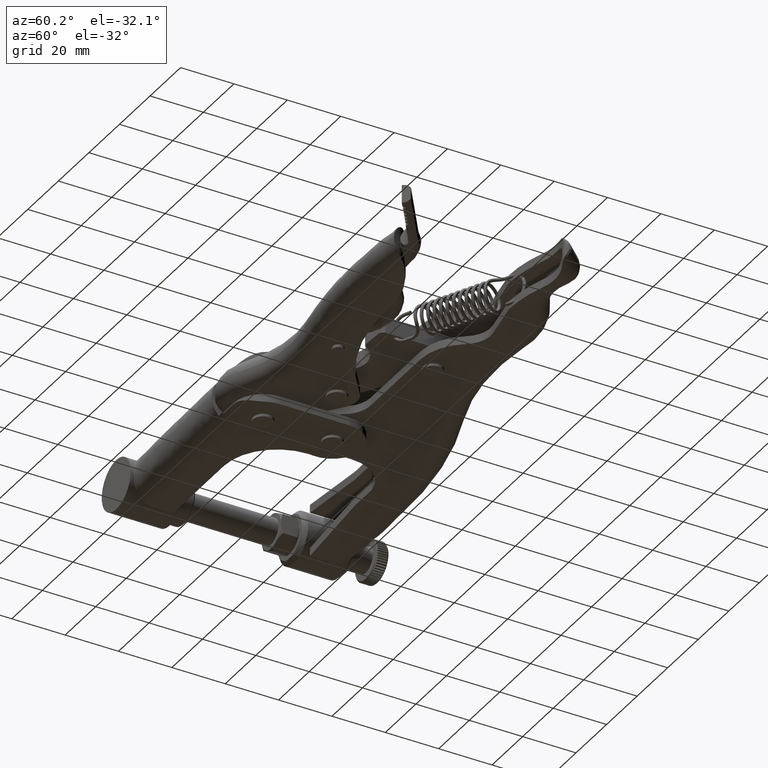
[diagram: clean part render]
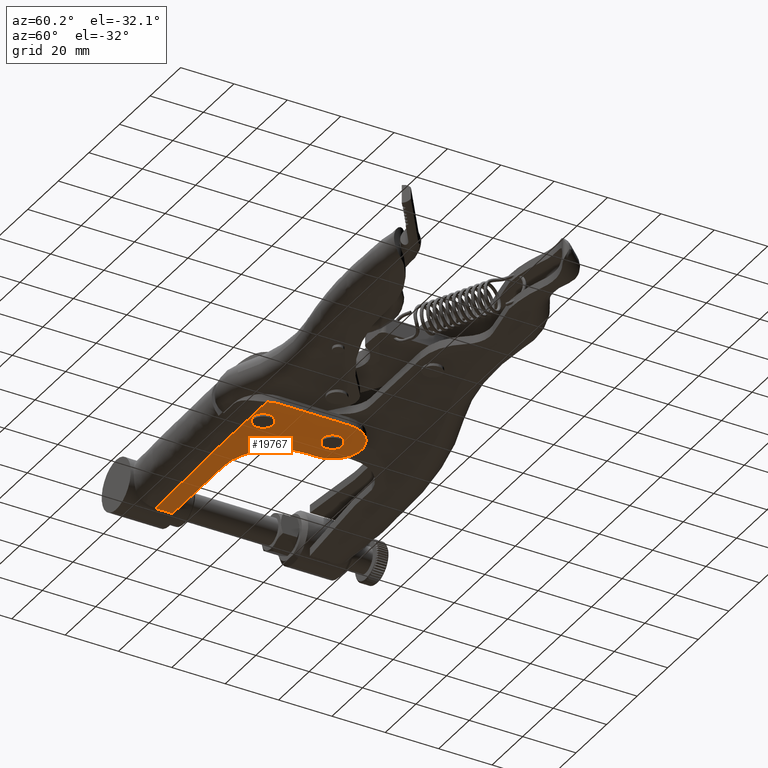
[diagram: same view with one face highlighted and labeled with its STEP entity id]
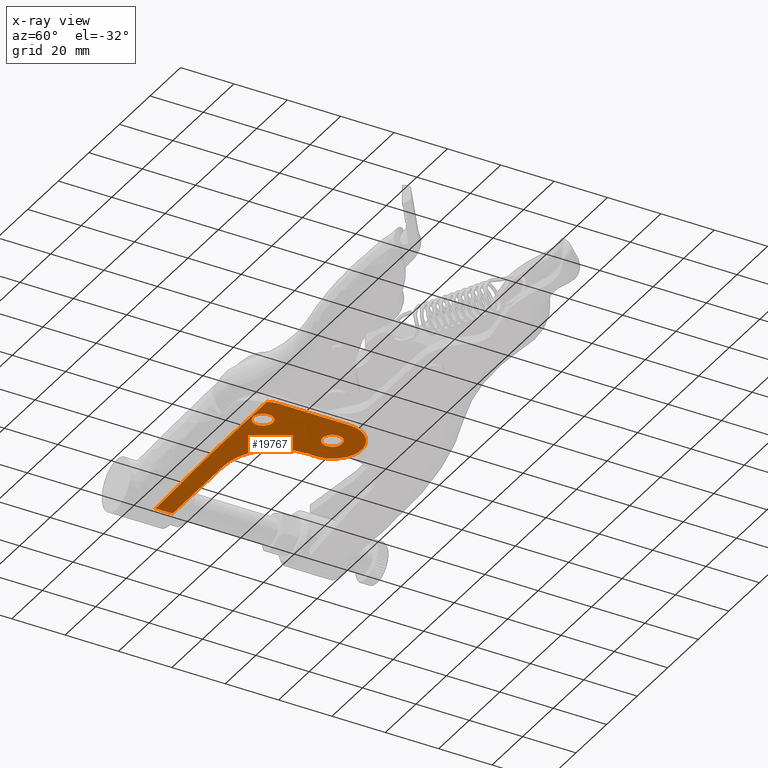
[diagram: x-ray of the same camera — body ghosted, the highlighted face saturated]
A machine part, auxiliary view. The second image highlights one B-rep face of the part: STEP entity #19767.
The next image is the same camera in x-ray: the body ghosted, the highlighted face saturated — about 0% of this face is hidden behind the body in this view.
In plain terms, the highlighted planar face has unit normal (-0, -0, -1).
Its self-contained STEP definition (entity closure, byte-faithful):
#111 = CARTESIAN_POINT ( 'NONE',  ( -3.700000000000019700, -25.99999999999998200, -9.599999999999996100 ) ) ;
#180 = EDGE_CURVE ( 'NONE', #22341, #20507, #7396, .T. ) ;
#296 = CIRCLE ( 'NONE', #22062, 3.700000000000000200 ) ;
#498 = DIRECTION ( 'NONE',  ( -9.100965374644486600E-058, -7.126397290674516900E-044, -1.000000000000000000 ) ) ;
#774 = ORIENTED_EDGE ( 'NONE', *, *, #13749, .T. ) ;
#1423 = EDGE_LOOP ( 'NONE', ( #6087, #774 ) ) ;
#2082 = ORIENTED_EDGE ( 'NONE', *, *, #22584, .T. ) ;
#2163 = LINE ( 'NONE', #14066, #14013 ) ;
#2170 = CARTESIAN_POINT ( 'NONE',  ( 0.0000000000000000000, 0.0000000000000000000, -9.599999999999996100 ) ) ;
#2387 = CIRCLE ( 'NONE', #25571, 10.99999999999998800 ) ;
#2546 = DIRECTION ( 'NONE',  ( -1.000000000000000000, 7.537373503119224900E-016, -5.367350677155233800E-059 ) ) ;
#3296 = ORIENTED_EDGE ( 'NONE', *, *, #22819, .F. ) ;
#3899 = CARTESIAN_POINT ( 'NONE',  ( -1.961050679483156100E-014, -25.99999999999998200, -9.599999999999996100 ) ) ;
#4543 = DIRECTION ( 'NONE',  ( 1.000000000000000000, 0.0000000000000000000, 0.0000000000000000000 ) ) ;
#4816 = PLANE ( 'NONE',  #8929 ) ;
#5070 = CARTESIAN_POINT ( 'NONE',  ( -10.94836998877138400, -1.064516129032237800, -9.599999999999999600 ) ) ;
#5423 = VECTOR ( 'NONE', #22760, 1000.000000000000000 ) ;
#5854 = AXIS2_PLACEMENT_3D ( 'NONE', #24501, #10295, #26896 ) ;
#6087 = ORIENTED_EDGE ( 'NONE', *, *, #19409, .T. ) ;
#6252 = CARTESIAN_POINT ( 'NONE',  ( -3.700000000000000200, 4.531193156845206200E-016, -9.599999999999996100 ) ) ;
#6255 = DIRECTION ( 'NONE',  ( 1.000000000000000000, 0.0000000000000000000, 0.0000000000000000000 ) ) ;
#6314 = CARTESIAN_POINT ( 'NONE',  ( 3.699999999999980600, -25.99999999999998200, -9.599999999999996100 ) ) ;
#6490 = EDGE_CURVE ( 'NONE', #6573, #11311, #19582, .T. ) ;
#6573 = VERTEX_POINT ( 'NONE', #5070 ) ;
#7153 = DIRECTION ( 'NONE',  ( -9.100965374644486600E-058, -7.126397290674516900E-044, -1.000000000000000000 ) ) ;
#7299 = ORIENTED_EDGE ( 'NONE', *, *, #25739, .T. ) ;
#7396 = LINE ( 'NONE', #17911, #30413 ) ;
#7468 = EDGE_CURVE ( 'NONE', #8599, #26868, #2163, .T. ) ;
#7893 = ORIENTED_EDGE ( 'NONE', *, *, #180, .T. ) ;
#7932 = AXIS2_PLACEMENT_3D ( 'NONE', #3899, #20469, #6255 ) ;
#8148 = EDGE_CURVE ( 'NONE', #20249, #21037, #296, .T. ) ;
#8599 = VERTEX_POINT ( 'NONE', #10536 ) ;
#8704 = EDGE_CURVE ( 'NONE', #27972, #8599, #11737, .T. ) ;
#8860 = EDGE_CURVE ( 'NONE', #28766, #20507, #10976, .T. ) ;
#8929 = AXIS2_PLACEMENT_3D ( 'NONE', #11848, #16716, #2546 ) ;
#9235 = CIRCLE ( 'NONE', #16940, 20.00000000000003600 ) ;
#9294 = FACE_BOUND ( 'NONE', #9913, .T. ) ;
#9336 = CARTESIAN_POINT ( 'NONE',  ( -14.76067881196530400, -30.57641437369050100, -9.599999999999999600 ) ) ;
#9913 = EDGE_LOOP ( 'NONE', ( #22514, #2082 ) ) ;
#9916 = CARTESIAN_POINT ( 'NONE',  ( 10.11982383505304400, -30.31151545833844800, -9.599999999999999600 ) ) ;
#10295 = DIRECTION ( 'NONE',  ( -0.0000000000000000000, -0.0000000000000000000, 1.000000000000000000 ) ) ;
#10536 = CARTESIAN_POINT ( 'NONE',  ( -64.50000000000005700, -22.99999999999998200, -9.599999999999999600 ) ) ;
#10976 = CIRCLE ( 'NONE', #24066, 10.99999999999998400 ) ;
#11108 = AXIS2_PLACEMENT_3D ( 'NONE', #21352, #7153, #23722 ) ;
#11311 = VERTEX_POINT ( 'NONE', #23620 ) ;
#11737 = LINE ( 'NONE', #15606, #5423 ) ;
#11848 = CARTESIAN_POINT ( 'NONE',  ( -25.70658828548619500, -96.87746532713544000, -9.599999999999999600 ) ) ;
#13352 = CARTESIAN_POINT ( 'NONE',  ( -3.081487911019577400E-029, -3.469446951953614200E-015, -9.599999999999999600 ) ) ;
#13647 = CARTESIAN_POINT ( 'NONE',  ( -1.959717110810999600E-014, -25.99999999999997900, -9.599999999999999600 ) ) ;
#13688 = DIRECTION ( 'NONE',  ( -0.0000000000000000000, -0.0000000000000000000, 1.000000000000000000 ) ) ;
#13749 = EDGE_CURVE ( 'NONE', #26763, #28351, #29435, .T. ) ;
#14013 = VECTOR ( 'NONE', #23784, 1000.000000000000000 ) ;
#14066 = CARTESIAN_POINT ( 'NONE',  ( -64.50000000000000000, -96.87746532713539700, -9.599999999999999600 ) ) ;
#14670 = CARTESIAN_POINT ( 'NONE',  ( -30.85449724108308800, -2.999999999999985300, -9.599999999999999600 ) ) ;
#14850 = FACE_BOUND ( 'NONE', #1423, .T. ) ;
#15098 = B_SPLINE_CURVE_WITH_KNOTS ( 'NONE', 3,
 ( #18785, #9336, #30687, #16491 ),
 .UNSPECIFIED., .F., .F.,
 ( 4, 4 ),
 ( 0.01165457610109379100, 1.000000000000000000 ),
 .UNSPECIFIED. ) ;
#15359 = ORIENTED_EDGE ( 'NONE', *, *, #6490, .F. ) ;
#15606 = CARTESIAN_POINT ( 'NONE',  ( -25.70658828548614100, -23.00000000000001100, -9.599999999999999600 ) ) ;
#15739 = DIRECTION ( 'NONE',  ( -1.000000000000000000, 7.537373503119224900E-016, 0.0000000000000000000 ) ) ;
#16024 = DIRECTION ( 'NONE',  ( -1.000000000000000000, 4.415659757031879000E-015, 0.0000000000000000000 ) ) ;
#16491 = CARTESIAN_POINT ( 'NONE',  ( -64.49999999999994300, -29.32204455408451000, -9.599999999999999600 ) ) ;
#16716 = DIRECTION ( 'NONE',  ( -4.081133987839345500E-062, -7.126397290674516900E-044, -1.000000000000000000 ) ) ;
#16940 = AXIS2_PLACEMENT_3D ( 'NONE', #14670, #498, #17054 ) ;
#17054 = DIRECTION ( 'NONE',  ( -1.000000000000000000, 7.589415207398517200E-016, 0.0000000000000000000 ) ) ;
#17911 = CARTESIAN_POINT ( 'NONE',  ( 10.99999999999988300, -96.87746532713546800, -9.599999999999999600 ) ) ;
#18229 = ORIENTED_EDGE ( 'NONE', *, *, #7468, .F. ) ;
#18540 = CIRCLE ( 'NONE', #28648, 3.700000000000000200 ) ;
#18728 = DIRECTION ( 'NONE',  ( -0.0000000000000000000, -0.0000000000000000000, 1.000000000000000000 ) ) ;
#18785 = CARTESIAN_POINT ( 'NONE',  ( 10.11982383505304400, -30.31151545833844800, -9.599999999999999600 ) ) ;
#19080 = CARTESIAN_POINT ( 'NONE',  ( -30.85449724108310200, -23.00000000000000700, -9.599999999999999600 ) ) ;
#19409 = EDGE_CURVE ( 'NONE', #28351, #26763, #30451, .T. ) ;
#19582 = CIRCLE ( 'NONE', #11108, 20.00000000000003600 ) ;
#19767 = ADVANCED_FACE ( 'NONE', ( #9294, #14850, #27474 ), #4816, .T. ) ;
#20249 = VERTEX_POINT ( 'NONE', #20812 ) ;
#20469 = DIRECTION ( 'NONE',  ( -0.0000000000000000000, -0.0000000000000000000, 1.000000000000000000 ) ) ;
#20507 = VERTEX_POINT ( 'NONE', #21418 ) ;
#20795 = EDGE_LOOP ( 'NONE', ( #26088, #7299, #18229, #27092, #3296, #15359, #30548, #7893 ) ) ;
#20812 = CARTESIAN_POINT ( 'NONE',  ( 3.700000000000000200, 0.0000000000000000000, -9.599999999999996100 ) ) ;
#21037 = VERTEX_POINT ( 'NONE', #6252 ) ;
#21352 = CARTESIAN_POINT ( 'NONE',  ( -30.85449724108308800, -2.999999999999985300, -9.599999999999999600 ) ) ;
#21418 = CARTESIAN_POINT ( 'NONE',  ( 10.99999999999996400, -25.99999999999998600, -9.599999999999999600 ) ) ;
#22062 = AXIS2_PLACEMENT_3D ( 'NONE', #27892, #13688, #30275 ) ;
#22341 = VERTEX_POINT ( 'NONE', #26613 ) ;
#22514 = ORIENTED_EDGE ( 'NONE', *, *, #8148, .T. ) ;
#22584 = EDGE_CURVE ( 'NONE', #21037, #20249, #18540, .T. ) ;
#22760 = DIRECTION ( 'NONE',  ( -1.000000000000000000, 7.537373503119224900E-016, -5.367350677155233800E-059 ) ) ;
#22819 = EDGE_CURVE ( 'NONE', #11311, #27972, #9235, .T. ) ;
#23620 = CARTESIAN_POINT ( 'NONE',  ( -10.85449724108306100, -3.000000000000000400, -9.599999999999999600 ) ) ;
#23722 = DIRECTION ( 'NONE',  ( -1.000000000000000000, 7.589415207398517200E-016, 0.0000000000000000000 ) ) ;
#23784 = DIRECTION ( 'NONE',  ( -7.537373503119224900E-016, -1.000000000000000000, 7.126397290674516900E-044 ) ) ;
#24066 = AXIS2_PLACEMENT_3D ( 'NONE', #13647, #30234, #16024 ) ;
#24501 = CARTESIAN_POINT ( 'NONE',  ( -1.961050679483156100E-014, -25.99999999999998200, -9.599999999999996100 ) ) ;
#25571 = AXIS2_PLACEMENT_3D ( 'NONE', #13352, #29934, #15739 ) ;
#25739 = EDGE_CURVE ( 'NONE', #28766, #26868, #15098, .T. ) ;
#26088 = ORIENTED_EDGE ( 'NONE', *, *, #8860, .F. ) ;
#26613 = CARTESIAN_POINT ( 'NONE',  ( 10.99999999999995600, -1.040834085586084300E-014, -9.599999999999999600 ) ) ;
#26763 = VERTEX_POINT ( 'NONE', #111 ) ;
#26868 = VERTEX_POINT ( 'NONE', #28889 ) ;
#26896 = DIRECTION ( 'NONE',  ( 1.000000000000000000, 0.0000000000000000000, 0.0000000000000000000 ) ) ;
#27092 = ORIENTED_EDGE ( 'NONE', *, *, #8704, .F. ) ;
#27474 = FACE_OUTER_BOUND ( 'NONE', #20795, .T. ) ;
#27892 = CARTESIAN_POINT ( 'NONE',  ( 0.0000000000000000000, 0.0000000000000000000, -9.599999999999996100 ) ) ;
#27972 = VERTEX_POINT ( 'NONE', #19080 ) ;
#28351 = VERTEX_POINT ( 'NONE', #6314 ) ;
#28648 = AXIS2_PLACEMENT_3D ( 'NONE', #2170, #18728, #4543 ) ;
#28766 = VERTEX_POINT ( 'NONE', #9916 ) ;
#28889 = CARTESIAN_POINT ( 'NONE',  ( -64.49999999999994300, -29.32204455408451000, -9.599999999999999600 ) ) ;
#29435 = CIRCLE ( 'NONE', #5854, 3.700000000000000200 ) ;
#29708 = DIRECTION ( 'NONE',  ( -7.537373503119224900E-016, -1.000000000000000000, 7.126397290674516900E-044 ) ) ;
#29934 = DIRECTION ( 'NONE',  ( -9.100965374644486600E-058, -7.126397290674516900E-044, -1.000000000000000000 ) ) ;
#30126 = EDGE_CURVE ( 'NONE', #6573, #22341, #2387, .T. ) ;
#30234 = DIRECTION ( 'NONE',  ( 9.100965374644486600E-058, 7.126397290674516900E-044, 1.000000000000000000 ) ) ;
#30275 = DIRECTION ( 'NONE',  ( 1.000000000000000000, 0.0000000000000000000, 0.0000000000000000000 ) ) ;
#30413 = VECTOR ( 'NONE', #29708, 1000.000000000000000 ) ;
#30451 = CIRCLE ( 'NONE', #7932, 3.700000000000000200 ) ;
#30548 = ORIENTED_EDGE ( 'NONE', *, *, #30126, .T. ) ;
#30687 = CARTESIAN_POINT ( 'NONE',  ( -39.63395341394051700, -30.24659074307642500, -9.599999999999999600 ) ) ;